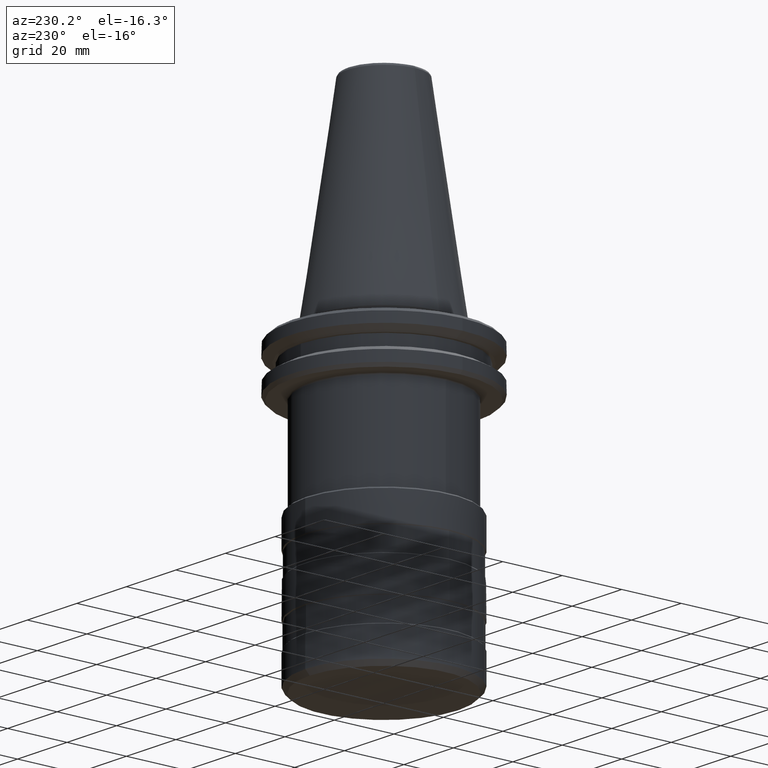
[diagram: clean part render]
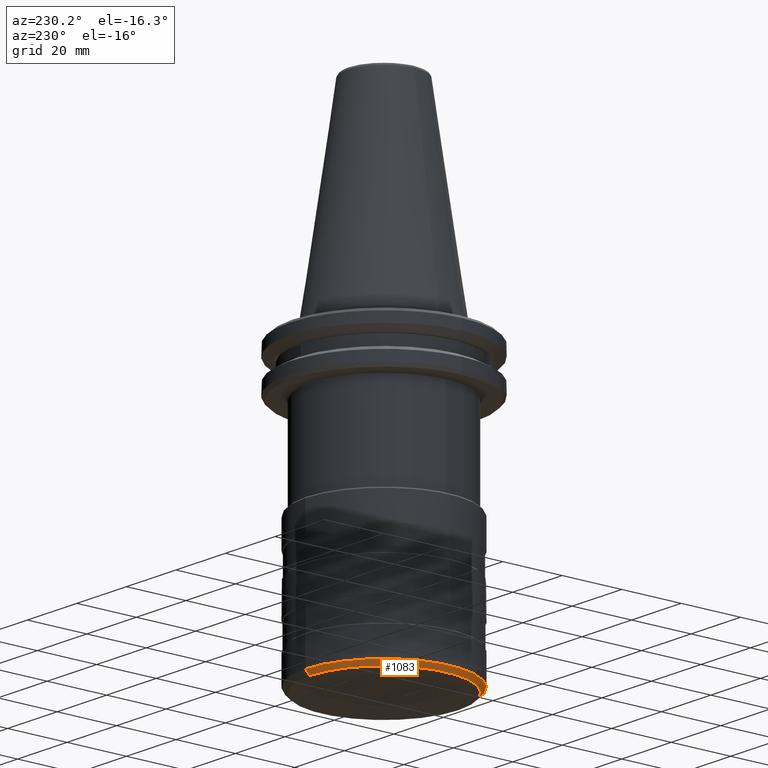
[diagram: same view with one face highlighted and labeled with its STEP entity id]
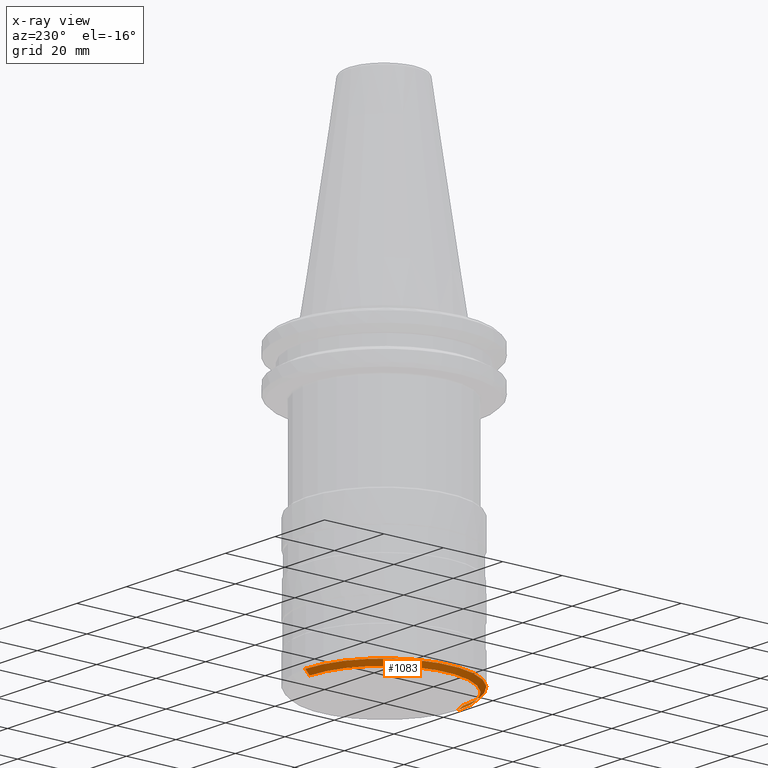
[diagram: x-ray of the same camera — body ghosted, the highlighted face saturated]
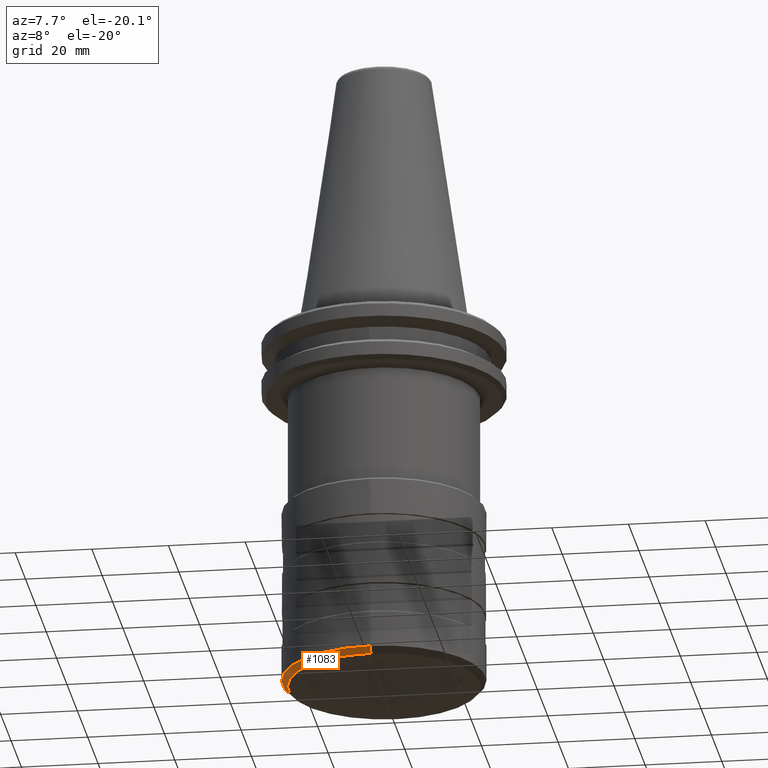
[diagram: same view with one face highlighted and labeled with its STEP entity id]
A machine part, auxiliary view. The second image highlights one B-rep face of the part: STEP entity #1083.
The next image is the same camera in x-ray: the body ghosted, the highlighted face saturated — about 0% of this face is hidden behind the body in this view.
A second angle (auxiliary view) of the same face is appended — the face is thin or edge-on in the first view.
In plain terms, the highlighted conical surface has half-angle 45 deg.
Its self-contained STEP definition (entity closure, byte-faithful):
#30 = ORIENTED_EDGE ( 'NONE', *, *, #1259, .T. ) ;
#86 = LINE ( 'NONE', #1032, #904 ) ;
#166 = CIRCLE ( 'NONE', #252, 25.00000000000002500 ) ;
#252 = AXIS2_PLACEMENT_3D ( 'NONE', #1147, #1815, #600 ) ;
#282 = AXIS2_PLACEMENT_3D ( 'NONE', #1663, #847, #1787 ) ;
#341 = AXIS2_PLACEMENT_3D ( 'NONE', #813, #1761, #958 ) ;
#370 = VERTEX_POINT ( 'NONE', #1832 ) ;
#443 = VERTEX_POINT ( 'NONE', #486 ) ;
#460 = CARTESIAN_POINT ( 'NONE',  ( 3.927675794664439300E-016, -25.00000000000002500, -97.99999999999998600 ) ) ;
#477 = EDGE_CURVE ( 'NONE', #370, #1368, #166, .T. ) ;
#486 = CARTESIAN_POINT ( 'NONE',  ( 3.245314017740491700E-015, 26.49999999999995400, -96.50000000000002800 ) ) ;
#499 = EDGE_CURVE ( 'NONE', #370, #443, #934, .T. ) ;
#600 = DIRECTION ( 'NONE',  ( 0.0000000000000000000, -1.000000000000000000, 0.0000000000000000000 ) ) ;
#760 = CARTESIAN_POINT ( 'NONE',  ( 3.245314017740486600E-015, 26.49999999999998900, -96.49999999999998600 ) ) ;
#793 = FACE_OUTER_BOUND ( 'NONE', #1202, .T. ) ;
#813 = CARTESIAN_POINT ( 'NONE',  ( 0.0000000000000000000, 5.450745125624254000E-030, -96.50000000000002800 ) ) ;
#847 = DIRECTION ( 'NONE',  ( -2.618450529776313700E-016, -2.618450529776314200E-016, 1.000000000000000000 ) ) ;
#904 = VECTOR ( 'NONE', #1824, 1000.000000000000100 ) ;
#934 = LINE ( 'NONE', #760, #1066 ) ;
#958 = DIRECTION ( 'NONE',  ( 0.0000000000000000000, -1.000000000000000000, -5.236901059552625500E-016 ) ) ;
#977 = VERTEX_POINT ( 'NONE', #1376 ) ;
#1031 = ORIENTED_EDGE ( 'NONE', *, *, #1480, .F. ) ;
#1032 = CARTESIAN_POINT ( 'NONE',  ( 1.816915041874751100E-030, -26.49999999999998900, -96.50000000000001400 ) ) ;
#1066 = VECTOR ( 'NONE', #1192, 1000.000000000000100 ) ;
#1083 = ADVANCED_FACE ( 'NONE', ( #793 ), #1093, .T. ) ;
#1093 = CONICAL_SURFACE ( 'NONE', #282, 26.49999999999998900, 0.7853981633974425100 ) ;
#1147 = CARTESIAN_POINT ( 'NONE',  ( 3.927675794664439300E-016, -1.341955896510363100E-015, -97.99999999999998600 ) ) ;
#1192 = DIRECTION ( 'NONE',  ( -9.855680695708616800E-017, 0.7071067811865431300, 0.7071067811865517900 ) ) ;
#1202 = EDGE_LOOP ( 'NONE', ( #1566, #1279, #30, #1031 ) ) ;
#1259 = EDGE_CURVE ( 'NONE', #1368, #977, #86, .T. ) ;
#1279 = ORIENTED_EDGE ( 'NONE', *, *, #477, .T. ) ;
#1368 = VERTEX_POINT ( 'NONE', #460 ) ;
#1376 = CARTESIAN_POINT ( 'NONE',  ( 7.267660167499004400E-030, -26.49999999999996800, -96.50000000000002800 ) ) ;
#1480 = EDGE_CURVE ( 'NONE', #443, #977, #1724, .T. ) ;
#1566 = ORIENTED_EDGE ( 'NONE', *, *, #499, .F. ) ;
#1663 = CARTESIAN_POINT ( 'NONE',  ( 1.816915041874751100E-030, -1.734723475976805300E-015, -96.50000000000000000 ) ) ;
#1724 = CIRCLE ( 'NONE', #341, 26.50000000000000000 ) ;
#1761 = DIRECTION ( 'NONE',  ( 0.0000000000000000000, -2.618450529776313200E-016, 1.000000000000000000 ) ) ;
#1787 = DIRECTION ( 'NONE',  ( 0.0000000000000000000, -1.000000000000000000, -5.236901059552627500E-016 ) ) ;
#1815 = DIRECTION ( 'NONE',  ( -2.618450529776313700E-016, -2.618450529776314200E-016, 1.000000000000000000 ) ) ;
#1824 = DIRECTION ( 'NONE',  ( -1.851524125806349900E-016, -0.7071067811865435800, 0.7071067811865513500 ) ) ;
#1832 = CARTESIAN_POINT ( 'NONE',  ( 3.349849297537661700E-015, 25.00000000000002500, -97.99999999999998600 ) ) ;